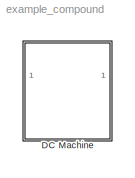
MODEL example_compound
KIND model
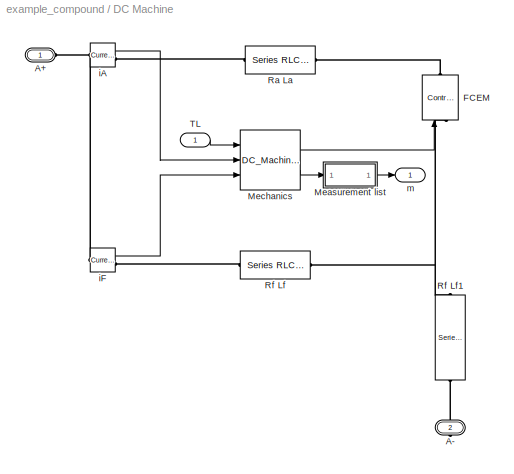
BLOCK [SubSystem] DC Machine
  FunctionWithSeparateData = off
  LoadFcn = find_system(gcs,'FollowLinks', 'on', 'LookUnderMasks', 'all');
  MaskHideContents = off
  MinAlgLoopOccurrences = off
  Opaque = off
  OpenFcn = power_openblockproxy();
  Ports = [1, 1, 0, 0, 0, 1, 1]
  PropExecContextOutsideSubsystem = off
  RTWSystemCode = Auto
  RequestExecContextInheritance = off
  SID = 1
BLOCK [PMIOPort] DC Machine/A+
  Port = 1
  SID = 1:14
  Side = Left
BLOCK [PMIOPort] DC Machine/A-
  Port = 2
  SID = 1:15
  Side = Right
BLOCK [Reference] DC Machine/FCEM  REF=powerlib/Electrical\nSources/Controlled Voltage Source
  Amplitude = 0
  Description = source block
  Frequency = 0
  Initialize = on
  Measurements = None
  Phase = 0
  Ports = [1, 0, 0, 0, 0, 1, 1]
  SID = 1:2
  SourceBlock = powerlib/Electrical\nSources/Controlled Voltage Source
  SourceType = Controlled Voltage Source
  Source_Type = AC
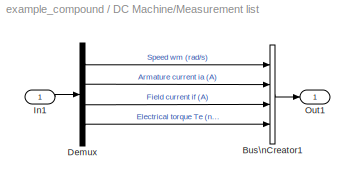
BLOCK [SubSystem] DC Machine/Measurement list
  FunctionWithSeparateData = off
  MaskHideContents = off
  MinAlgLoopOccurrences = off
  Opaque = off
  Ports = [1, 1]
  PropExecContextOutsideSubsystem = off
  RTWSystemCode = Auto
  RequestExecContextInheritance = off
  SID = 1:3
BLOCK [BusCreator] DC Machine/Measurement list/Bus\nCreator1
  DisplayOption = bar
  Ports = [4, 1]
  SID = 1:5
BLOCK [Demux] DC Machine/Measurement list/Demux
  DisplayOption = bar
  Outputs = [1,1,1,1]
  Ports = [1, 4]
  SID = 1:6
BLOCK [Inport] DC Machine/Measurement list/In1
  IconDisplay = Port number
  SID = 1:4
BLOCK [Outport] DC Machine/Measurement list/Out1
  IconDisplay = Port number
  SID = 1:7
BLOCK [Reference] DC Machine/Mechanics  REF=powerlib_models/Continuous/DC_Machine_mec
  Ports = [3, 2]
  SID = 1:8
  SourceBlock = powerlib_models/Continuous/DC_Machine_mec
  SourceType = SubSystem
BLOCK [Reference] DC Machine/Ra La  REF=powerlib/Elements/Series RLC Branch
  BranchType = RL
  Capacitance = inf
  Inductance = La
  InitialCurrent = 0
  InitialVoltage = 0
  LConnTagsString = __new0
  Measurements = None
  Ports = [0, 0, 0, 0, 0, 1, 1]
  RConnTagsString = __new0
  Resistance = Ra
  SID = 1:9
  SetiL0 = off
  Setx0 = off
  SourceBlock = powerlib/Elements/Series RLC Branch
  SourceType = Series RLC Branch
BLOCK [Reference] DC Machine/Rf  Lf  REF=powerlib/Elements/Series RLC Branch
  BranchType = RL
  Capacitance = inf
  Inductance = Lf
  InitialCurrent = 0
  InitialVoltage = 0
  LConnTagsString = __new0
  Measurements = None
  Ports = [0, 0, 0, 0, 0, 1, 1]
  RConnTagsString = __new0
  Resistance = Rf
  SID = 1:10
  SetiL0 = off
  Setx0 = off
  SourceBlock = powerlib/Elements/Series RLC Branch
  SourceType = Series RLC Branch
BLOCK [Reference] DC Machine/Rf  Lf1  REF=powerlib/Elements/Series RLC Branch
  BranchType = RL
  Capacitance = inf
  Inductance = Lf
  InitialCurrent = 0
  InitialVoltage = 0
  LConnTagsString = __new0
  Measurements = None
  Ports = [0, 0, 0, 0, 0, 1, 1]
  RConnTagsString = __new0
  Resistance = Rf
  SID = 1:11
  SetiL0 = off
  Setx0 = off
  SourceBlock = powerlib/Elements/Series RLC Branch
  SourceType = Series RLC Branch
BLOCK [Inport] DC Machine/TL
  IconDisplay = Port number
  SID = 1:1
BLOCK [Reference] DC Machine/iA  REF=powerlib/Measurements/Current Measurement
  OutputType = Magnitude
  PSBequivalent = 0
  PhasorSimulation = off
  Ports = [0, 1, 0, 0, 0, 1, 1]
  SID = 1:12
  SourceBlock = powerlib/Measurements/Current Measurement
  SourceType = Current Measurement
BLOCK [Reference] DC Machine/iF  REF=powerlib/Measurements/Current Measurement
  OutputType = Magnitude
  PSBequivalent = 0
  PhasorSimulation = off
  Ports = [0, 1, 0, 0, 0, 1, 1]
  SID = 1:13
  SourceBlock = powerlib/Measurements/Current Measurement
  SourceType = Current Measurement
BLOCK [Outport] DC Machine/m
  IconDisplay = Port number
  SID = 1:16
LINE DC Machine/Measurement list/Bus\nCreator1:1 -> DC Machine/Measurement list/Out1:1
LINE DC Machine/Measurement list/Demux:1 -> DC Machine/Measurement list/Bus\nCreator1:1
LINE DC Machine/Measurement list/Demux:2 -> DC Machine/Measurement list/Bus\nCreator1:2
LINE DC Machine/Measurement list/Demux:3 -> DC Machine/Measurement list/Bus\nCreator1:3
LINE DC Machine/Measurement list/Demux:4 -> DC Machine/Measurement list/Bus\nCreator1:4
LINE DC Machine/Measurement list/In1:1 -> DC Machine/Measurement list/Demux:1
LINE DC Machine/Measurement list:1 -> DC Machine/m:1
LINE DC Machine/Mechanics:1 -> DC Machine/FCEM:1
LINE DC Machine/Mechanics:2 -> DC Machine/Measurement list:1
LINE DC Machine/TL:1 -> DC Machine/Mechanics:1
LINE DC Machine/iA:1 -> DC Machine/Mechanics:2
LINE DC Machine/iF:1 -> DC Machine/Mechanics:3
PNET net1: DC Machine/A+:RConn1 -- DC Machine/iA:LConn1 -- DC Machine/iF:LConn1
PLINE DC Machine/A-:RConn1 -- DC Machine/Rf  Lf1:RConn1
PNET net2: DC Machine/FCEM:LConn1 -- DC Machine/Rf  Lf1:LConn1 -- DC Machine/Rf  Lf:RConn1
PLINE DC Machine/FCEM:RConn1 -- DC Machine/Ra La:RConn1
PLINE DC Machine/Ra La:LConn1 -- DC Machine/iA:RConn1
PLINE DC Machine/Rf  Lf:LConn1 -- DC Machine/iF:RConn1
note: PNET lines group multi-terminal physical nets as a canonical sorted terminal list (undirected conserving connections); 2-terminal nets keep the pairwise PLINE form
